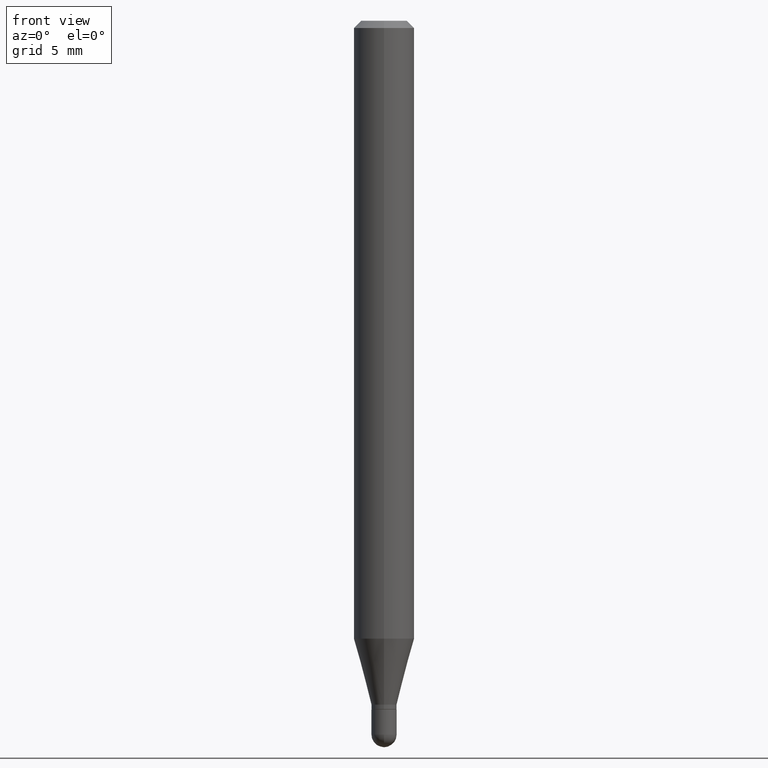
[diagram: clean part render]
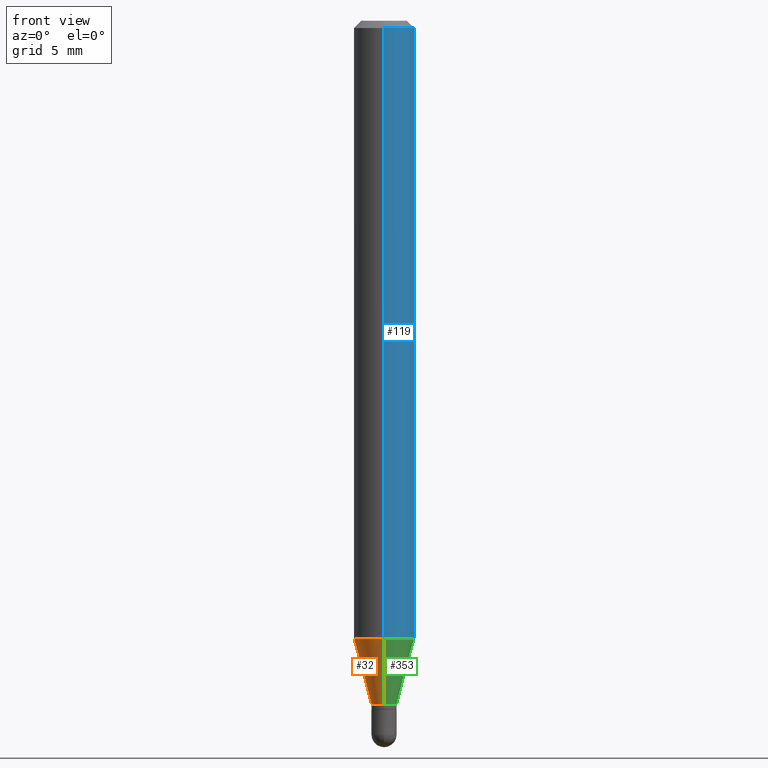
[diagram: same view with three faces highlighted in distinct colors, each labeled with its STEP entity id]
A machine part, front view with three faces highlighted in distinct colors.
Their STEP definitions:

[orange] entity #32 — the highlighted conical surface has half-angle 15 deg.
#4 = FACE_OUTER_BOUND ( 'NONE', #59, .T. ) ;
#6 = CARTESIAN_POINT ( 'NONE',  ( 3.144151605738769548E-16, 0.02599999999999499239, -1.412000000000000366 ) ) ;
#8 = EDGE_CURVE ( 'NONE', #115, #297, #303, .T. ) ;
#27 = VERTEX_POINT ( 'NONE', #6 ) ;
#32 = ADVANCED_FACE ( 'NONE', ( #4 ), #492, .T. ) ;
#38 = CIRCLE ( 'NONE', #374, 0.02599999999999992248 ) ;
#44 = CARTESIAN_POINT ( 'NONE',  ( 3.452987437800442419E-29, -4.929992438947967820E-15, -1.412000000000000366 ) ) ;
#45 = AXIS2_PLACEMENT_3D ( 'NONE', #44, #439, #173 ) ;
#54 = CIRCLE ( 'NONE', #122, 0.06250000000000000000 ) ;
#59 = EDGE_LOOP ( 'NONE', ( #372, #193, #407, #414 ) ) ;
#111 = LINE ( 'NONE', #188, #169 ) ;
#115 = VERTEX_POINT ( 'NONE', #298 ) ;
#122 = AXIS2_PLACEMENT_3D ( 'NONE', #245, #325, #405 ) ;
#126 = EDGE_CURVE ( 'NONE', #27, #379, #111, .T. ) ;
#162 = VECTOR ( 'NONE', #454, 39.37007874015748854 ) ;
#169 = VECTOR ( 'NONE', #225, 39.37007874015748854 ) ;
#173 = DIRECTION ( 'NONE',  ( -6.982962677686266711E-15, -1.000000000000000000, 0.000000000000000000 ) ) ;
#188 = CARTESIAN_POINT ( 'NONE',  ( 1.847411112976599855E-16, 0.02599999999999499239, -1.412000000000000366 ) ) ;
#193 = ORIENTED_EDGE ( 'NONE', *, *, #267, .T. ) ;
#206 = CARTESIAN_POINT ( 'NONE',  ( 4.440892098500935790E-16, 0.06249999999999552441, -1.275780145523737197 ) ) ;
#225 = DIRECTION ( 'NONE',  ( 1.839019923739603471E-15, 0.2588190451025254024, 0.9659258262890669799 ) ) ;
#245 = CARTESIAN_POINT ( 'NONE',  ( 3.119867433348925085E-29, -4.454381353535382076E-15, -1.275780145523736753 ) ) ;
#267 = EDGE_CURVE ( 'NONE', #27, #115, #38, .T. ) ;
#297 = VERTEX_POINT ( 'NONE', #313 ) ;
#298 = CARTESIAN_POINT ( 'NONE',  ( -1.815570296198078736E-16, -0.02600000000000485256, -1.412000000000000366 ) ) ;
#303 = LINE ( 'NONE', #412, #162 ) ;
#313 = CARTESIAN_POINT ( 'NONE',  ( -4.364351673553606080E-16, -0.06250000000000446865, -1.275780145523736531 ) ) ;
#325 = DIRECTION ( 'NONE',  ( -2.445458525354420395E-29, 3.491496061577879933E-15, 1.000000000000000000 ) ) ;
#372 = ORIENTED_EDGE ( 'NONE', *, *, #126, .F. ) ;
#374 = AXIS2_PLACEMENT_3D ( 'NONE', #411, #464, #375 ) ;
#375 = DIRECTION ( 'NONE',  ( -6.982962677686266711E-15, -1.000000000000000000, 0.000000000000000000 ) ) ;
#379 = VERTEX_POINT ( 'NONE', #206 ) ;
#405 = DIRECTION ( 'NONE',  ( -6.982962677686265922E-15, -1.000000000000000000, 4.370956789862821150E-15 ) ) ;
#407 = ORIENTED_EDGE ( 'NONE', *, *, #8, .T. ) ;
#411 = CARTESIAN_POINT ( 'NONE',  ( 3.452987437800442419E-29, -4.929992438947967820E-15, -1.412000000000000366 ) ) ;
#412 = CARTESIAN_POINT ( 'NONE',  ( -1.815570296198078736E-16, -0.02600000000000485256, -1.412000000000000366 ) ) ;
#414 = ORIENTED_EDGE ( 'NONE', *, *, #502, .F. ) ;
#439 = DIRECTION ( 'NONE',  ( -2.445458525354420395E-29, 3.491496061577879933E-15, 1.000000000000000000 ) ) ;
#454 = DIRECTION ( 'NONE',  ( -1.807323732225333295E-15, -0.2588190451025186301, 0.9659258262890687563 ) ) ;
#464 = DIRECTION ( 'NONE',  ( -2.445458525354420395E-29, 3.491496061577879933E-15, 1.000000000000000000 ) ) ;
#492 = CONICAL_SURFACE ( 'NONE', #45, 0.02599999999999992248, 0.2617993877991507956 ) ;
#502 = EDGE_CURVE ( 'NONE', #379, #297, #54, .T. ) ;

[blue] entity #119 — the highlighted cylindrical surface (edge-blend (fillet) strip) has radius 1.5875 mm, axis along (-0, 0, 1).
#23 = ORIENTED_EDGE ( 'NONE', *, *, #322, .T. ) ;
#28 = EDGE_CURVE ( 'NONE', #254, #257, #76, .T. ) ;
#60 = FACE_OUTER_BOUND ( 'NONE', #440, .T. ) ;
#72 = CARTESIAN_POINT ( 'NONE',  ( 4.440892098500939734E-16, 0.06249999999999995143, -0.01500000000000054588 ) ) ;
#73 = ORIENTED_EDGE ( 'NONE', *, *, #28, .F. ) ;
#76 = CIRCLE ( 'NONE', #427, 0.06250000000000000000 ) ;
#97 = CYLINDRICAL_SURFACE ( 'NONE', #392, 0.06250000000000000000 ) ;
#119 = ADVANCED_FACE ( 'NONE', ( #60 ), #97, .T. ) ;
#140 = DIRECTION ( 'NONE',  ( -2.445458525354420395E-29, 3.491496061577879933E-15, 1.000000000000000000 ) ) ;
#163 = ORIENTED_EDGE ( 'NONE', *, *, #334, .T. ) ;
#186 = CARTESIAN_POINT ( 'NONE',  ( -4.364351673553916201E-16, -0.06250000000000000000, 2.182185038486174958E-16 ) ) ;
#206 = CARTESIAN_POINT ( 'NONE',  ( 4.440892098500935790E-16, 0.06249999999999552441, -1.275780145523737197 ) ) ;
#211 = AXIS2_PLACEMENT_3D ( 'NONE', #393, #323, #320 ) ;
#214 = EDGE_CURVE ( 'NONE', #297, #254, #371, .T. ) ;
#244 = DIRECTION ( 'NONE',  ( -6.982962677686265922E-15, -1.000000000000000000, 3.483106191921935554E-15 ) ) ;
#254 = VERTEX_POINT ( 'NONE', #450 ) ;
#257 = VERTEX_POINT ( 'NONE', #72 ) ;
#261 = DIRECTION ( 'NONE',  ( -2.445458525354420395E-29, 3.491496061577879933E-15, 1.000000000000000000 ) ) ;
#286 = DIRECTION ( 'NONE',  ( -2.445458525354420395E-29, 3.491496061577879933E-15, 1.000000000000000000 ) ) ;
#287 = CARTESIAN_POINT ( 'NONE',  ( 3.668187788031710974E-31, -5.237244092366934457E-17, -0.01500000000000032904 ) ) ;
#295 = DIRECTION ( 'NONE',  ( -6.982962677686265922E-15, -1.000000000000000000, 3.491496061577879933E-15 ) ) ;
#297 = VERTEX_POINT ( 'NONE', #313 ) ;
#313 = CARTESIAN_POINT ( 'NONE',  ( -4.364351673553606080E-16, -0.06250000000000446865, -1.275780145523736531 ) ) ;
#320 = DIRECTION ( 'NONE',  ( -6.982962677686265922E-15, -1.000000000000000000, 4.370956789862821150E-15 ) ) ;
#322 = EDGE_CURVE ( 'NONE', #379, #257, #434, .T. ) ;
#323 = DIRECTION ( 'NONE',  ( -2.445458525354420395E-29, 3.491496061577879933E-15, 1.000000000000000000 ) ) ;
#324 = VECTOR ( 'NONE', #286, 39.37007874015748143 ) ;
#334 = EDGE_CURVE ( 'NONE', #297, #379, #441, .T. ) ;
#371 = LINE ( 'NONE', #186, #449 ) ;
#379 = VERTEX_POINT ( 'NONE', #206 ) ;
#392 = AXIS2_PLACEMENT_3D ( 'NONE', #486, #140, #295 ) ;
#393 = CARTESIAN_POINT ( 'NONE',  ( 3.119867433348925085E-29, -4.454381353535382076E-15, -1.275780145523736753 ) ) ;
#395 = DIRECTION ( 'NONE',  ( -2.445458525354420395E-29, 3.491496061577879933E-15, 1.000000000000000000 ) ) ;
#410 = ORIENTED_EDGE ( 'NONE', *, *, #214, .F. ) ;
#427 = AXIS2_PLACEMENT_3D ( 'NONE', #287, #395, #244 ) ;
#434 = LINE ( 'NONE', #511, #324 ) ;
#440 = EDGE_LOOP ( 'NONE', ( #163, #23, #73, #410 ) ) ;
#441 = CIRCLE ( 'NONE', #211, 0.06250000000000000000 ) ;
#449 = VECTOR ( 'NONE', #261, 39.37007874015748143 ) ;
#450 = CARTESIAN_POINT ( 'NONE',  ( -4.364351673553912750E-16, -0.06250000000000005551, -0.01500000000000011047 ) ) ;
#486 = CARTESIAN_POINT ( 'NONE',  ( 0.000000000000000000, 0.000000000000000000, 0.000000000000000000 ) ) ;
#511 = CARTESIAN_POINT ( 'NONE',  ( 4.440892098500625669E-16, 0.06250000000000000000, -2.182185038486174958E-16 ) ) ;

[green] entity #353 — the highlighted conical surface has half-angle 15 deg.
#6 = CARTESIAN_POINT ( 'NONE',  ( 3.144151605738769548E-16, 0.02599999999999499239, -1.412000000000000366 ) ) ;
#8 = EDGE_CURVE ( 'NONE', #115, #297, #303, .T. ) ;
#19 = DIRECTION ( 'NONE',  ( -2.445458525354420395E-29, 3.491496061577879933E-15, 1.000000000000000000 ) ) ;
#27 = VERTEX_POINT ( 'NONE', #6 ) ;
#108 = DIRECTION ( 'NONE',  ( -6.982962677686266711E-15, -1.000000000000000000, 0.000000000000000000 ) ) ;
#111 = LINE ( 'NONE', #188, #169 ) ;
#115 = VERTEX_POINT ( 'NONE', #298 ) ;
#120 = CIRCLE ( 'NONE', #469, 0.02599999999999992248 ) ;
#126 = EDGE_CURVE ( 'NONE', #27, #379, #111, .T. ) ;
#143 = ORIENTED_EDGE ( 'NONE', *, *, #334, .F. ) ;
#161 = FACE_OUTER_BOUND ( 'NONE', #445, .T. ) ;
#162 = VECTOR ( 'NONE', #454, 39.37007874015748854 ) ;
#169 = VECTOR ( 'NONE', #225, 39.37007874015748854 ) ;
#177 = EDGE_CURVE ( 'NONE', #115, #27, #120, .T. ) ;
#188 = CARTESIAN_POINT ( 'NONE',  ( 1.847411112976599855E-16, 0.02599999999999499239, -1.412000000000000366 ) ) ;
#191 = CARTESIAN_POINT ( 'NONE',  ( 3.452987437800442419E-29, -4.929992438947967820E-15, -1.412000000000000366 ) ) ;
#206 = CARTESIAN_POINT ( 'NONE',  ( 4.440892098500935790E-16, 0.06249999999999552441, -1.275780145523737197 ) ) ;
#211 = AXIS2_PLACEMENT_3D ( 'NONE', #393, #323, #320 ) ;
#225 = DIRECTION ( 'NONE',  ( 1.839019923739603471E-15, 0.2588190451025254024, 0.9659258262890669799 ) ) ;
#242 = DIRECTION ( 'NONE',  ( -6.982962677686266711E-15, -1.000000000000000000, 0.000000000000000000 ) ) ;
#260 = ORIENTED_EDGE ( 'NONE', *, *, #8, .F. ) ;
#270 = ORIENTED_EDGE ( 'NONE', *, *, #126, .T. ) ;
#282 = CARTESIAN_POINT ( 'NONE',  ( 3.452987437800442419E-29, -4.929992438947967820E-15, -1.412000000000000366 ) ) ;
#297 = VERTEX_POINT ( 'NONE', #313 ) ;
#298 = CARTESIAN_POINT ( 'NONE',  ( -1.815570296198078736E-16, -0.02600000000000485256, -1.412000000000000366 ) ) ;
#302 = ORIENTED_EDGE ( 'NONE', *, *, #177, .T. ) ;
#303 = LINE ( 'NONE', #412, #162 ) ;
#313 = CARTESIAN_POINT ( 'NONE',  ( -4.364351673553606080E-16, -0.06250000000000446865, -1.275780145523736531 ) ) ;
#320 = DIRECTION ( 'NONE',  ( -6.982962677686265922E-15, -1.000000000000000000, 4.370956789862821150E-15 ) ) ;
#323 = DIRECTION ( 'NONE',  ( -2.445458525354420395E-29, 3.491496061577879933E-15, 1.000000000000000000 ) ) ;
#334 = EDGE_CURVE ( 'NONE', #297, #379, #441, .T. ) ;
#353 = ADVANCED_FACE ( 'NONE', ( #161 ), #419, .T. ) ;
#379 = VERTEX_POINT ( 'NONE', #206 ) ;
#393 = CARTESIAN_POINT ( 'NONE',  ( 3.119867433348925085E-29, -4.454381353535382076E-15, -1.275780145523736753 ) ) ;
#412 = CARTESIAN_POINT ( 'NONE',  ( -1.815570296198078736E-16, -0.02600000000000485256, -1.412000000000000366 ) ) ;
#419 = CONICAL_SURFACE ( 'NONE', #494, 0.02599999999999992248, 0.2617993877991507956 ) ;
#432 = DIRECTION ( 'NONE',  ( -2.445458525354420395E-29, 3.491496061577879933E-15, 1.000000000000000000 ) ) ;
#441 = CIRCLE ( 'NONE', #211, 0.06250000000000000000 ) ;
#445 = EDGE_LOOP ( 'NONE', ( #302, #270, #143, #260 ) ) ;
#454 = DIRECTION ( 'NONE',  ( -1.807323732225333295E-15, -0.2588190451025186301, 0.9659258262890687563 ) ) ;
#469 = AXIS2_PLACEMENT_3D ( 'NONE', #191, #19, #108 ) ;
#494 = AXIS2_PLACEMENT_3D ( 'NONE', #282, #432, #242 ) ;